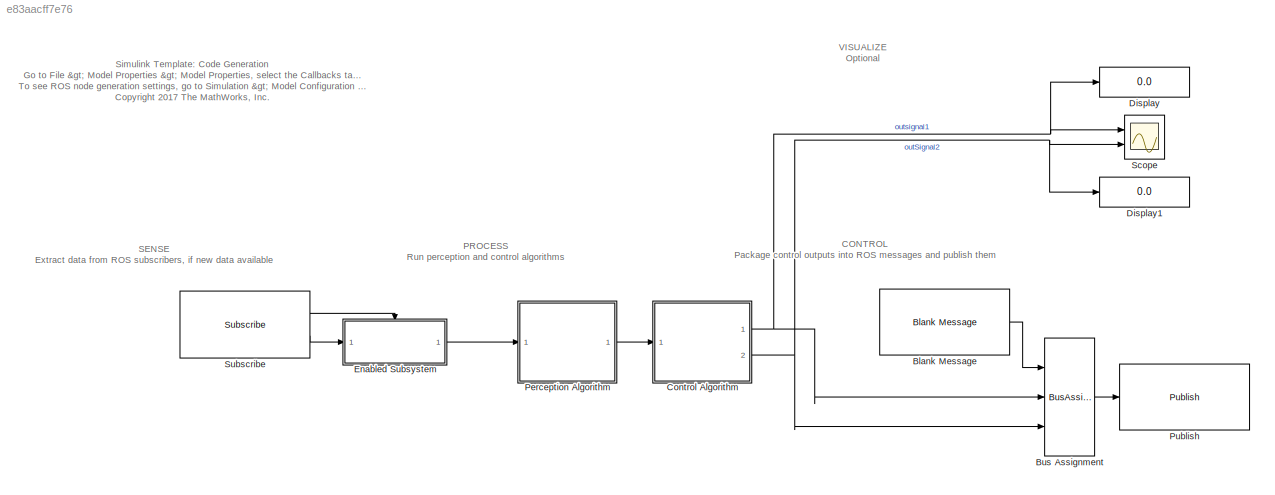
MODEL slx_e83aacff7e76
KIND model
CONFIG AbsTol = auto
CONFIG EnableMultiTasking = off
CONFIG FixedStep = auto
CONFIG MaxStep = auto
CONFIG MinStep = auto
CONFIG PreLoadFcn = % ROS setup\nrosshutdown;\nipAddr = '';\nrosinit(ipAddr)\n\n% Sample times\nsampleTime = 0.2;\n\n% Control parameters\nctrlParam1 = 2;\nctrlParam2 = 3.5;
CONFIG RelTol = 1e-3
CONFIG SampleTimeConstraint = Unconstrained
CONFIG Solver = FixedStepAuto
CONFIG SolverName = FixedStepAuto
CONFIG StartTime = 0.0
CONFIG StopTime = inf
BLOCK [Reference] Blank Message  REF=robotlib/Blank Message
  Ports = [0, 1]
  SourceBlock = robotlib/Blank Message
  SourceLibraryInfo = This block requires Robotics System Toolbox
  SourceProductBaseCode = RO
  SourceProductName = Robotics System Toolbox
  SourceType = ROS Blank Message
BLOCK [BusAssignment] Bus Assignment
  AssignedSignals = X,Y
  Ports = [3, 1]
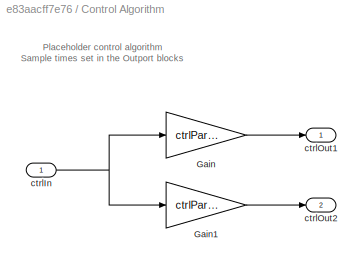
BLOCK [SubSystem] Control Algorithm
  Ports = [1, 2]
  RequestExecContextInheritance = off
  Variant = off
BLOCK [Gain] Control Algorithm/Gain
  Gain = ctrlParam1
  OutDataTypeStr = Inherit: Inherit via internal rule
  ParamDataTypeStr = Inherit: Inherit via internal rule
  SaturateOnIntegerOverflow = off
BLOCK [Gain] Control Algorithm/Gain1
  Gain = ctrlParam2
  OutDataTypeStr = Inherit: Inherit via internal rule
  ParamDataTypeStr = Inherit: Inherit via internal rule
  SaturateOnIntegerOverflow = off
BLOCK [Inport] Control Algorithm/ctrlIn
  IconDisplay = Port number
BLOCK [Outport] Control Algorithm/ctrlOut1
  AttributesFormatString = Sample time: %<SampleTime>
  IconDisplay = Port number
  SampleTime = sampleTime
  SignalType = real
BLOCK [Outport] Control Algorithm/ctrlOut2
  AttributesFormatString = Sample time: %<SampleTime>
  IconDisplay = Port number
  Port = 2
  SampleTime = sampleTime
BLOCK [Display] Display
  Decimation = 1
  Ports = [1]
BLOCK [Display] Display1
  Decimation = 1
  Ports = [1]
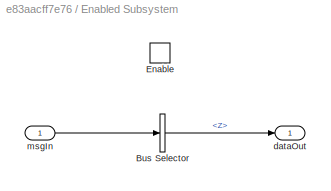
BLOCK [SubSystem] Enabled Subsystem
  Ports = [1, 1, 1]
  RequestExecContextInheritance = off
  TreatAsAtomicUnit = on
  Variant = off
BLOCK [BusSelector] Enabled Subsystem/Bus Selector
  OutputAsBus = off
  OutputSignals = Z
  Ports = [1, 1]
BLOCK [EnablePort] Enabled Subsystem/Enable
  Ports = []
BLOCK [Outport] Enabled Subsystem/dataOut
  IconDisplay = Port number
BLOCK [Inport] Enabled Subsystem/msgIn
  IconDisplay = Port number
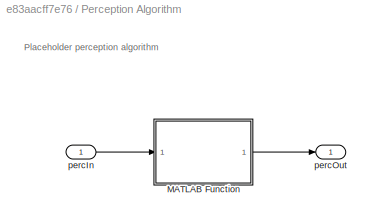
BLOCK [SubSystem] Perception Algorithm
  Ports = [1, 1]
  RequestExecContextInheritance = off
  Variant = off
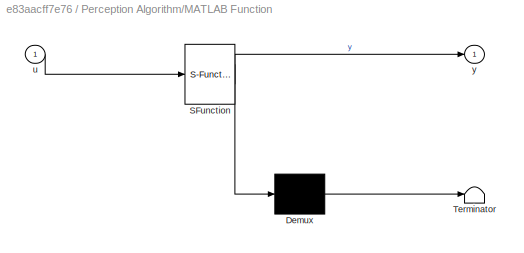
BLOCK [SubSystem] Perception Algorithm/MATLAB Function
  ErrorFcn = Stateflow.Translate.translate
  PermitHierarchicalResolution = ExplicitOnly
  Ports = [1, 1]
  RequestExecContextInheritance = off
  SFBlockType = MATLAB Function
  TreatAsAtomicUnit = on
  Variant = off
BLOCK [Demux] Perception Algorithm/MATLAB Function/ Demux 
  Outputs = 1
  Ports = [1, 1]
BLOCK [S-Function] Perception Algorithm/MATLAB Function/ SFunction 
  EnableBusSupport = on
  FunctionName = sf_sfun
  PortCounts = [1 2]
  Ports = [1, 2]
  SFcnIsStateOwnerBlock = off
  SFunctionDeploymentMode = off
  Tag = Stateflow S-Function codeGenerationTemplate 2
BLOCK [Terminator] Perception Algorithm/MATLAB Function/ Terminator 
BLOCK [Inport] Perception Algorithm/MATLAB Function/u
  IconDisplay = Port number
BLOCK [Outport] Perception Algorithm/MATLAB Function/y
  IconDisplay = Port number
BLOCK [Inport] Perception Algorithm/percIn
  IconDisplay = Port number
BLOCK [Outport] Perception Algorithm/percOut
  IconDisplay = Port number
BLOCK [Reference] Publish  REF=robotlib/Publish
  Ports = [1]
  SourceBlock = robotlib/Publish
  SourceLibraryInfo = This block requires Robotics System Toolbox
  SourceProductBaseCode = RO
  SourceProductName = Robotics System Toolbox
  SourceType = ROS Publish
BLOCK [Scope] Scope
  NumInputPorts = 2
  Ports = [2]
  ScopeSpecificationString = Simulink.scopes.TimeScopeBlockCfg('CurrentConfiguration', extmgr.ConfigurationSet(extmgr.Configuration('Core','General UI',true),extmgr.Configuration('Core','Source UI',true),extmgr.Configuration('Sources','WiredSimulink',true),extmgr.Configuration('Visuals','Time Domain',true),extmgr.Configuration('Tools','Plot Navigation',true),extmgr.Configuration('Tools','Measurements',true)),'Version','2017b'...<+1ch>
BLOCK [Reference] Subscribe  REF=robotlib/Subscribe
  Ports = [0, 2]
  SourceBlock = robotlib/Subscribe
  SourceLibraryInfo = This block requires Robotics System Toolbox
  SourceProductBaseCode = RO
  SourceProductName = Robotics System Toolbox
  SourceType = ROS Subscribe
ANNOTATION (root): Simulink Template: Code Generation Go to File > Model Properties > Model Properties , select the Callbacks tab, and go to PreLoadFcn. Here, you can set up MATLAB code to run when loading the model, such as initalizing ROS and loading parameters. To see ROS node generation settings, go to Simulation > Model Configuration Parameters and select the Hardware Implementation pane. <copyright redacted>
ANNOTATION (root): CONTROL Package control outputs into ROS messages and publish them
ANNOTATION (root): PROCESS Run perception and control algorithms
ANNOTATION (root): SENSE Extract data from ROS subscribers, if new data available
ANNOTATION (root): VISUALIZE Optional
ANNOTATION Control Algorithm: Placeholder control algorithm Sample times set in the Outport blocks
ANNOTATION Perception Algorithm: Placeholder perception algorithm
LINE Blank Message:1 -> Bus Assignment:1
LINE Bus Assignment:1 -> Publish:1
LINE Control Algorithm/Gain1:1 -> Control Algorithm/ctrlOut2:1
LINE Control Algorithm/Gain:1 -> Control Algorithm/ctrlOut1:1
NET Control Algorithm/ctrlIn:1 -> Control Algorithm/Gain1:1, Control Algorithm/Gain:1
NET Control Algorithm:1 -> Bus Assignment:2, Display:1, Scope:1
NET Control Algorithm:2 -> Bus Assignment:3, Display1:1, Scope:2
LINE Enabled Subsystem/Bus Selector:1 -> Enabled Subsystem/dataOut:1
LINE Enabled Subsystem/msgIn:1 -> Enabled Subsystem/Bus Selector:1
LINE Enabled Subsystem:1 -> Perception Algorithm:1
LINE Perception Algorithm/MATLAB Function:1 -> Perception Algorithm/percOut:1
LINE Perception Algorithm/percIn:1 -> Perception Algorithm/MATLAB Function:1
LINE Perception Algorithm:1 -> Control Algorithm:1
LINE Subscribe:1 -> Enabled Subsystem:enable
LINE Subscribe:2 -> Enabled Subsystem:1
note: NET lines group one-source signal fan-out (src -> all destinations, sorted); 1:1 wires keep LINE
CHART Perception Algorithm/MATLAB Function states=1 transitions=1
  STATE_LABEL 'eML_blk_kernel()'
  STATE_LABEL 'SCRIPT:\nfunction y = myPerceptionFcn(u)\n\ny = 2*u;\n'
